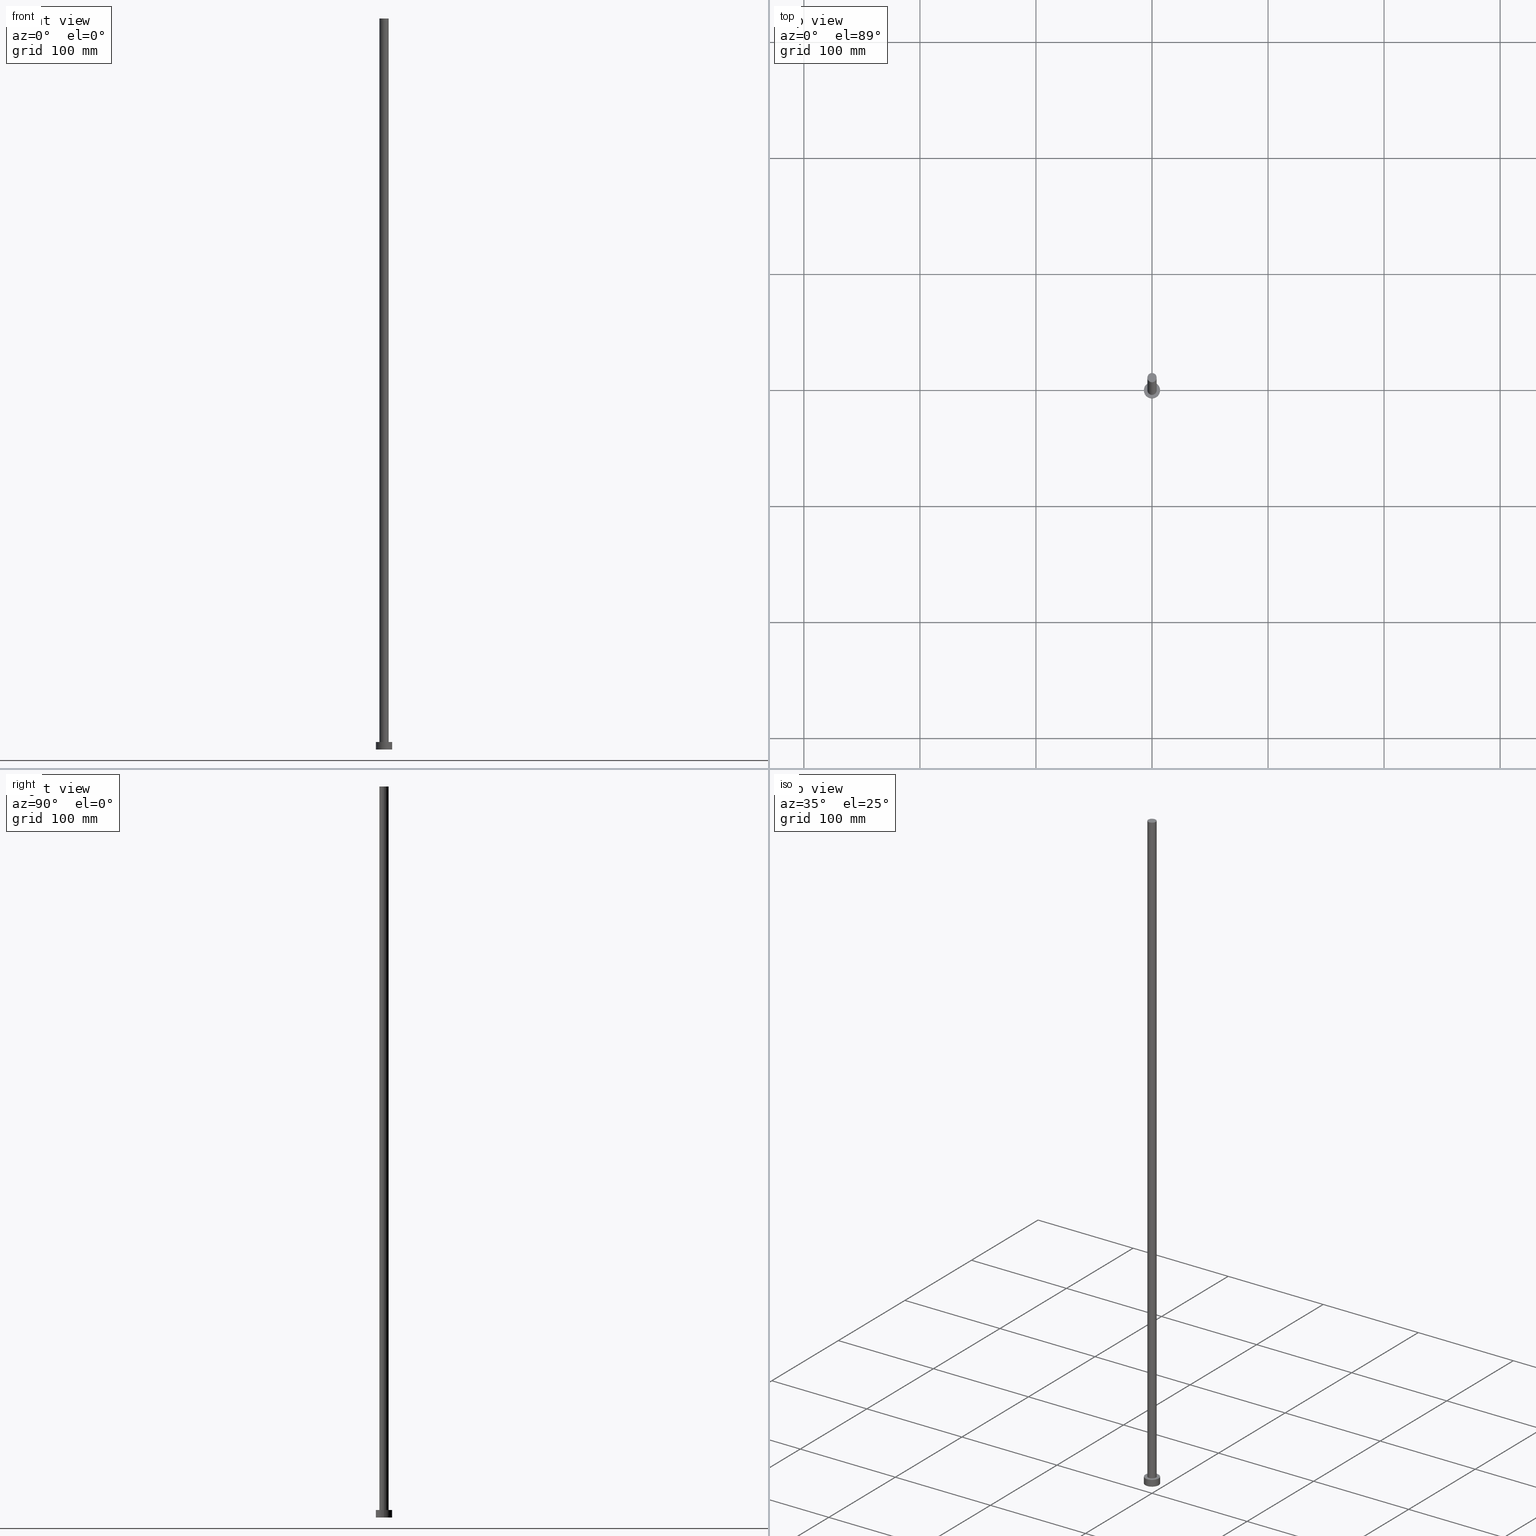
[diagram: canonical four-view strip — front | top / right | iso, engineering-drawing reading convention]
A machine part, canonical four-view strip (front | top / right | iso — engineering-drawing reading convention). The complete STEP part file that produces these views, byte-faithful:
ISO-10303-21;
HEADER;
FILE_DESCRIPTION (( 'STEP AP203' ),
    '1' );
FILE_NAME ('1e03.STEP',
    '2023-02-13T14:18:34',
    ( '' ),
    ( '' ),
    'SwSTEP 2.0',
    'SolidWorks 2019',
    '' );
FILE_SCHEMA (( 'CONFIG_CONTROL_DESIGN' ));
ENDSEC;

DATA;
#1 = EDGE_LOOP ( 'NONE', ( #228, #136 ) ) ;
#2 = DIRECTION ( 'NONE',  ( 0.000000000000000000, 0.000000000000000000, 1.000000000000000000 ) ) ;
#3 = EDGE_LOOP ( 'NONE', ( #190, #137, #186, #135 ) ) ;
#4 = LOCAL_TIME ( 15, 18, 34.00000000000000000, #131 ) ;
#5 = CARTESIAN_POINT ( 'NONE',  ( 0.000000000000000000, 0.000000000000000000, 0.000000000000000000 ) ) ;
#6 = ORIENTED_EDGE ( 'NONE', *, *, #52, .F. ) ;
#7 = CARTESIAN_POINT ( 'NONE',  ( -7.000000000000000000, 0.000000000000000000, 6.500000000000000000 ) ) ;
#8 = VECTOR ( 'NONE', #43, 1000.000000000000000 ) ;
#9 = CC_DESIGN_APPROVAL ( #201, ( #166 ) ) ;
#10 = CARTESIAN_POINT ( 'NONE',  ( 7.000000000000000000, 8.572527594031471218E-16, 0.000000000000000000 ) ) ;
#11 = CC_DESIGN_PERSON_AND_ORGANIZATION_ASSIGNMENT ( #141, #161, ( #85 ) ) ;
#12 = FACE_OUTER_BOUND ( 'NONE', #1, .T. ) ;
#13 = ADVANCED_FACE ( 'NONE', ( #174 ), #27, .F. ) ;
#14 = DATE_TIME_ROLE ( 'creation_date' ) ;
#15 = APPROVAL_DATE_TIME ( #250, #120 ) ;
#16 =( NAMED_UNIT ( * ) SI_UNIT ( $, .STERADIAN. ) SOLID_ANGLE_UNIT ( ) );
#17 =( GEOMETRIC_REPRESENTATION_CONTEXT ( 3 ) GLOBAL_UNCERTAINTY_ASSIGNED_CONTEXT ( ( #203 ) ) GLOBAL_UNIT_ASSIGNED_CONTEXT ( ( #37, #99, #16 ) ) REPRESENTATION_CONTEXT ( 'NONE', 'WORKASPACE' ) );
#18 = DATE_AND_TIME ( #103, #4 ) ;
#19 = APPROVAL ( #202, 'NEUR�EN�' ) ;
#20 = APPROVAL_ROLE ( '' ) ;
#21 = AXIS2_PLACEMENT_3D ( 'NONE', #235, #142, #31 ) ;
#22 = PLANE ( 'NONE',  #56 ) ;
#23 = VERTEX_POINT ( 'NONE', #7 ) ;
#24 = VERTEX_POINT ( 'NONE', #177 ) ;
#25 = LOCAL_TIME ( 15, 18, 34.00000000000000000, #234 ) ;
#26 = ORIENTED_EDGE ( 'NONE', *, *, #231, .T. ) ;
#27 = PLANE ( 'NONE',  #229 ) ;
#28 = DIRECTION ( 'NONE',  ( 0.000000000000000000, 0.000000000000000000, 1.000000000000000000 ) ) ;
#29 = DIRECTION ( 'NONE',  ( 0.000000000000000000, 0.000000000000000000, 1.000000000000000000 ) ) ;
#30 = PERSON_AND_ORGANIZATION_ROLE ( 'creator' ) ;
#31 = DIRECTION ( 'NONE',  ( 1.000000000000000000, 0.000000000000000000, 0.000000000000000000 ) ) ;
#32 = PERSON_AND_ORGANIZATION ( #104, #100 ) ;
#33 = DIRECTION ( 'NONE',  ( 0.000000000000000000, 0.000000000000000000, 1.000000000000000000 ) ) ;
#34 = CARTESIAN_POINT ( 'NONE',  ( 0.000000000000000000, 0.000000000000000000, 6.500000000000000000 ) ) ;
#35 = APPROVAL_STATUS ( 'not_yet_approved' ) ;
#36 = AXIS2_PLACEMENT_3D ( 'NONE', #34, #75, #236 ) ;
#37 =( LENGTH_UNIT ( ) NAMED_UNIT ( * ) SI_UNIT ( .MILLI., .METRE. ) );
#38 = PRODUCT_DEFINITION_SHAPE ( 'NONE', 'NONE',  #85 ) ;
#39 = APPLICATION_CONTEXT ( 'configuration controlled 3d designs of mechanical parts and assemblies' ) ;
#40 = ADVANCED_FACE ( 'NONE', ( #134 ), #122, .T. ) ;
#41 = DATE_TIME_ROLE ( 'classification_date' ) ;
#42 = AXIS2_PLACEMENT_3D ( 'NONE', #223, #46, #74 ) ;
#43 = DIRECTION ( 'NONE',  ( -0.000000000000000000, -0.000000000000000000, -1.000000000000000000 ) ) ;
#44 = LOCAL_TIME ( 15, 18, 34.00000000000000000, #180 ) ;
#45 = SECURITY_CLASSIFICATION_LEVEL ( 'unclassified' ) ;
#46 = DIRECTION ( 'NONE',  ( 0.000000000000000000, 0.000000000000000000, 1.000000000000000000 ) ) ;
#47 = VERTEX_POINT ( 'NONE', #168 ) ;
#48 = CC_DESIGN_PERSON_AND_ORGANIZATION_ASSIGNMENT ( #196, #77, ( #166 ) ) ;
#49 = DIRECTION ( 'NONE',  ( -0.000000000000000000, -0.000000000000000000, -1.000000000000000000 ) ) ;
#50 = ORIENTED_EDGE ( 'NONE', *, *, #239, .T. ) ;
#51 = ADVANCED_FACE ( 'NONE', ( #241 ), #108, .T. ) ;
#52 = EDGE_CURVE ( 'NONE', #249, #47, #156, .T. ) ;
#53 = DIRECTION ( 'NONE',  ( 1.000000000000000000, 0.000000000000000000, -0.000000000000000000 ) ) ;
#54 = APPROVAL_DATE_TIME ( #127, #201 ) ;
#55 = EDGE_CURVE ( 'NONE', #24, #249, #62, .T. ) ;
#56 = AXIS2_PLACEMENT_3D ( 'NONE', #126, #29, #53 ) ;
#57 = DIRECTION ( 'NONE',  ( -1.000000000000000000, 0.000000000000000000, 0.000000000000000000 ) ) ;
#58 = CARTESIAN_POINT ( 'NONE',  ( 7.000000000000000000, 8.572527594031471218E-16, 6.500000000000000000 ) ) ;
#59 = COORDINATED_UNIVERSAL_TIME_OFFSET ( 1, 0, .AHEAD. ) ;
#60 = APPLICATION_PROTOCOL_DEFINITION ( 'international standard', 'config_control_design', 1994, #246 ) ;
#61 = PERSON_AND_ORGANIZATION ( #104, #100 ) ;
#62 = CIRCLE ( 'NONE', #199, 4.000000000000000000 ) ;
#63 = ADVANCED_FACE ( 'NONE', ( #184 ), #82, .T. ) ;
#64 = DIRECTION ( 'NONE',  ( -0.000000000000000000, -0.000000000000000000, -1.000000000000000000 ) ) ;
#65 = ORIENTED_EDGE ( 'NONE', *, *, #158, .T. ) ;
#66 = CC_DESIGN_PERSON_AND_ORGANIZATION_ASSIGNMENT ( #216, #30, ( #166 ) ) ;
#67 = CARTESIAN_POINT ( 'NONE',  ( 0.000000000000000000, 0.000000000000000000, 6.500000000000000000 ) ) ;
#68 = DIRECTION ( 'NONE',  ( 1.000000000000000000, 0.000000000000000000, -0.000000000000000000 ) ) ;
#69 = DIRECTION ( 'NONE',  ( 0.000000000000000000, 0.000000000000000000, 1.000000000000000000 ) ) ;
#70 = EDGE_LOOP ( 'NONE', ( #232, #109, #110, #65 ) ) ;
#71 = CARTESIAN_POINT ( 'NONE',  ( 7.000000000000000000, 8.572527594031471218E-16, 6.500000000000000000 ) ) ;
#72 = CC_DESIGN_DATE_AND_TIME_ASSIGNMENT ( #107, #41, ( #113 ) ) ;
#73 = DESIGN_CONTEXT ( 'detailed design', #39, 'design' ) ;
#74 = DIRECTION ( 'NONE',  ( 1.000000000000000000, 0.000000000000000000, 0.000000000000000000 ) ) ;
#75 = DIRECTION ( 'NONE',  ( 0.000000000000000000, 0.000000000000000000, 1.000000000000000000 ) ) ;
#76 = PRODUCT_RELATED_PRODUCT_CATEGORY ( 'detail', '', ( #254 ) ) ;
#77 = PERSON_AND_ORGANIZATION_ROLE ( 'design_supplier' ) ;
#78 = CLOSED_SHELL ( 'NONE', ( #63, #51, #182, #162, #13, #40, #185 ) ) ;
#79 = APPROVAL_DATE_TIME ( #18, #19 ) ;
#80 = EDGE_CURVE ( 'NONE', #249, #24, #84, .T. ) ;
#81 = CALENDAR_DATE ( 2023, 13, 2 ) ;
#82 = CYLINDRICAL_SURFACE ( 'NONE', #159, 4.000000000000000000 ) ;
#83 = EDGE_LOOP ( 'NONE', ( #224, #210 ) ) ;
#84 = CIRCLE ( 'NONE', #42, 4.000000000000000000 ) ;
#85 = PRODUCT_DEFINITION ( 'NEZN�M�', '', #166, #73 ) ;
#86 = DIRECTION ( 'NONE',  ( 0.000000000000000000, 0.000000000000000000, 1.000000000000000000 ) ) ;
#87 = EDGE_CURVE ( 'NONE', #23, #157, #92, .T. ) ;
#88 = ORIENTED_EDGE ( 'NONE', *, *, #152, .T. ) ;
#89 = CIRCLE ( 'NONE', #179, 7.000000000000000000 ) ;
#90 = VERTEX_POINT ( 'NONE', #71 ) ;
#91 = AXIS2_PLACEMENT_3D ( 'NONE', #247, #144, #198 ) ;
#92 = LINE ( 'NONE', #164, #233 ) ;
#93 = CARTESIAN_POINT ( 'NONE',  ( 0.000000000000000000, 0.000000000000000000, 6.500000000000000000 ) ) ;
#94 = CC_DESIGN_DATE_AND_TIME_ASSIGNMENT ( #194, #14, ( #85 ) ) ;
#95 = CIRCLE ( 'NONE', #91, 7.000000000000000000 ) ;
#96 = APPROVAL_STATUS ( 'not_yet_approved' ) ;
#97 = PLANE ( 'NONE',  #167 ) ;
#98 = DIRECTION ( 'NONE',  ( 1.000000000000000000, 0.000000000000000000, -0.000000000000000000 ) ) ;
#99 =( NAMED_UNIT ( * ) PLANE_ANGLE_UNIT ( ) SI_UNIT ( $, .RADIAN. ) );
#100 = ORGANIZATION ( 'NEUR�EN�', 'NEUR�EN�', '' ) ;
#101 = PERSON_AND_ORGANIZATION_ROLE ( 'design_owner' ) ;
#102 = EDGE_CURVE ( 'NONE', #230, #157, #145, .T. ) ;
#103 = CALENDAR_DATE ( 2023, 13, 2 ) ;
#104 = PERSON ( 'NEUR�EN�', 'NEUR�EN�', 'NEUR�EN�', ('NEUR�EN�'), ('NEUR�EN�'), ('NEUR�EN�') ) ;
#105 = FACE_BOUND ( 'NONE', #176, .T. ) ;
#106 = AXIS2_PLACEMENT_3D ( 'NONE', #253, #220, #150 ) ;
#107 = DATE_AND_TIME ( #81, #209 ) ;
#108 = CYLINDRICAL_SURFACE ( 'NONE', #124, 7.000000000000000000 ) ;
#109 = ORIENTED_EDGE ( 'NONE', *, *, #170, .F. ) ;
#110 = ORIENTED_EDGE ( 'NONE', *, *, #87, .T. ) ;
#111 = AXIS2_PLACEMENT_3D ( 'NONE', #214, #117, #178 ) ;
#112 = VERTEX_POINT ( 'NONE', #138 ) ;
#113 = SECURITY_CLASSIFICATION ( '', '', #45 ) ;
#114 = ORIENTED_EDGE ( 'NONE', *, *, #212, .T. ) ;
#115 = AXIS2_PLACEMENT_3D ( 'NONE', #93, #49, #197 ) ;
#116 = ADVANCED_BREP_SHAPE_REPRESENTATION ( '1e03', ( #207, #106 ), #17 ) ;
#117 = DIRECTION ( 'NONE',  ( 0.000000000000000000, 0.000000000000000000, 1.000000000000000000 ) ) ;
#118 = CARTESIAN_POINT ( 'NONE',  ( -4.000000000000000000, 0.000000000000000000, 630.0000000000000000 ) ) ;
#119 = CYLINDRICAL_SURFACE ( 'NONE', #115, 7.000000000000000000 ) ;
#120 = APPROVAL ( #35, 'NEUR�EN�' ) ;
#121 = CALENDAR_DATE ( 2023, 13, 2 ) ;
#122 = CYLINDRICAL_SURFACE ( 'NONE', #191, 4.000000000000000000 ) ;
#123 = LINE ( 'NONE', #58, #255 ) ;
#124 = AXIS2_PLACEMENT_3D ( 'NONE', #67, #173, #248 ) ;
#125 = APPROVAL_ROLE ( '' ) ;
#126 = CARTESIAN_POINT ( 'NONE',  ( 0.000000000000000000, 0.000000000000000000, 6.500000000000000000 ) ) ;
#127 = DATE_AND_TIME ( #163, #44 ) ;
#128 = PERSON_AND_ORGANIZATION_ROLE ( 'classification_officer' ) ;
#129 = VECTOR ( 'NONE', #195, 1000.000000000000000 ) ;
#130 = PERSON_AND_ORGANIZATION ( #104, #100 ) ;
#131 = COORDINATED_UNIVERSAL_TIME_OFFSET ( 1, 0, .AHEAD. ) ;
#132 = SHAPE_DEFINITION_REPRESENTATION ( #38, #116 ) ;
#133 = CARTESIAN_POINT ( 'NONE',  ( 0.000000000000000000, 0.000000000000000000, 630.0000000000000000 ) ) ;
#134 = FACE_OUTER_BOUND ( 'NONE', #213, .T. ) ;
#135 = ORIENTED_EDGE ( 'NONE', *, *, #87, .F. ) ;
#136 = ORIENTED_EDGE ( 'NONE', *, *, #80, .T. ) ;
#137 = ORIENTED_EDGE ( 'NONE', *, *, #192, .T. ) ;
#138 = CARTESIAN_POINT ( 'NONE',  ( -4.000000000000000000, 0.000000000000000000, 6.500000000000000000 ) ) ;
#139 = CARTESIAN_POINT ( 'NONE',  ( -7.000000000000000000, 0.000000000000000000, 0.000000000000000000 ) ) ;
#140 = DIRECTION ( 'NONE',  ( -0.000000000000000000, -0.000000000000000000, -1.000000000000000000 ) ) ;
#141 = PERSON_AND_ORGANIZATION ( #104, #100 ) ;
#142 = DIRECTION ( 'NONE',  ( 0.000000000000000000, 0.000000000000000000, 1.000000000000000000 ) ) ;
#143 = CARTESIAN_POINT ( 'NONE',  ( 0.000000000000000000, 0.000000000000000000, 630.0000000000000000 ) ) ;
#144 = DIRECTION ( 'NONE',  ( 0.000000000000000000, 0.000000000000000000, 1.000000000000000000 ) ) ;
#145 = CIRCLE ( 'NONE', #21, 7.000000000000000000 ) ;
#146 = CARTESIAN_POINT ( 'NONE',  ( 0.000000000000000000, 0.000000000000000000, 0.000000000000000000 ) ) ;
#147 = DIRECTION ( 'NONE',  ( 1.000000000000000000, 0.000000000000000000, 0.000000000000000000 ) ) ;
#148 = CC_DESIGN_PERSON_AND_ORGANIZATION_ASSIGNMENT ( #200, #101, ( #254 ) ) ;
#149 = CALENDAR_DATE ( 2023, 13, 2 ) ;
#150 = DIRECTION ( 'NONE',  ( 1.000000000000000000, 0.000000000000000000, 0.000000000000000000 ) ) ;
#151 = CARTESIAN_POINT ( 'NONE',  ( 4.000000000000000000, 4.898587196589411843E-16, 630.0000000000000000 ) ) ;
#152 = EDGE_CURVE ( 'NONE', #112, #47, #219, .T. ) ;
#153 = DIRECTION ( 'NONE',  ( 1.000000000000000000, 0.000000000000000000, 0.000000000000000000 ) ) ;
#154 = DIRECTION ( 'NONE',  ( -1.000000000000000000, 0.000000000000000000, 0.000000000000000000 ) ) ;
#155 = AXIS2_PLACEMENT_3D ( 'NONE', #165, #69, #147 ) ;
#156 = LINE ( 'NONE', #227, #8 ) ;
#157 = VERTEX_POINT ( 'NONE', #139 ) ;
#158 = EDGE_CURVE ( 'NONE', #157, #230, #89, .T. ) ;
#159 = AXIS2_PLACEMENT_3D ( 'NONE', #171, #64, #154 ) ;
#160 = CC_DESIGN_APPROVAL ( #19, ( #113 ) ) ;
#161 = PERSON_AND_ORGANIZATION_ROLE ( 'creator' ) ;
#162 = ADVANCED_FACE ( 'NONE', ( #105, #204 ), #22, .T. ) ;
#163 = CALENDAR_DATE ( 2023, 13, 2 ) ;
#164 = CARTESIAN_POINT ( 'NONE',  ( -7.000000000000000000, 0.000000000000000000, 6.500000000000000000 ) ) ;
#165 = CARTESIAN_POINT ( 'NONE',  ( 0.000000000000000000, 0.000000000000000000, 6.500000000000000000 ) ) ;
#166 = PRODUCT_DEFINITION_FORMATION_WITH_SPECIFIED_SOURCE ( 'LIBOVOLN�', '', #254, .NOT_KNOWN. ) ;
#167 = AXIS2_PLACEMENT_3D ( 'NONE', #211, #28, #98 ) ;
#168 = CARTESIAN_POINT ( 'NONE',  ( 4.000000000000000000, 4.898587196589411843E-16, 6.500000000000000000 ) ) ;
#169 = COORDINATED_UNIVERSAL_TIME_OFFSET ( 1, 0, .AHEAD. ) ;
#170 = EDGE_CURVE ( 'NONE', #23, #90, #95, .T. ) ;
#171 = CARTESIAN_POINT ( 'NONE',  ( 0.000000000000000000, 0.000000000000000000, 630.0000000000000000 ) ) ;
#172 = ORIENTED_EDGE ( 'NONE', *, *, #80, .F. ) ;
#173 = DIRECTION ( 'NONE',  ( -0.000000000000000000, -0.000000000000000000, -1.000000000000000000 ) ) ;
#174 = FACE_OUTER_BOUND ( 'NONE', #83, .T. ) ;
#175 = EDGE_LOOP ( 'NONE', ( #172, #226, #26, #244 ) ) ;
#176 = EDGE_LOOP ( 'NONE', ( #188, #208 ) ) ;
#177 = CARTESIAN_POINT ( 'NONE',  ( -4.000000000000000000, 0.000000000000000000, 630.0000000000000000 ) ) ;
#178 = DIRECTION ( 'NONE',  ( 1.000000000000000000, 0.000000000000000000, 0.000000000000000000 ) ) ;
#179 = AXIS2_PLACEMENT_3D ( 'NONE', #146, #33, #153 ) ;
#180 = COORDINATED_UNIVERSAL_TIME_OFFSET ( 1, 0, .AHEAD. ) ;
#181 = DIRECTION ( 'NONE',  ( -0.000000000000000000, -0.000000000000000000, -1.000000000000000000 ) ) ;
#182 = ADVANCED_FACE ( 'NONE', ( #237 ), #119, .T. ) ;
#183 = CC_DESIGN_APPROVAL ( #120, ( #85 ) ) ;
#184 = FACE_OUTER_BOUND ( 'NONE', #175, .T. ) ;
#185 = ADVANCED_FACE ( 'NONE', ( #12 ), #97, .T. ) ;
#186 = ORIENTED_EDGE ( 'NONE', *, *, #102, .T. ) ;
#187 = APPROVAL_PERSON_ORGANIZATION ( #61, #120, #240 ) ;
#188 = ORIENTED_EDGE ( 'NONE', *, *, #152, .F. ) ;
#189 = EDGE_LOOP ( 'NONE', ( #245, #50 ) ) ;
#190 = ORIENTED_EDGE ( 'NONE', *, *, #239, .F. ) ;
#191 = AXIS2_PLACEMENT_3D ( 'NONE', #143, #140, #57 ) ;
#192 = EDGE_CURVE ( 'NONE', #90, #230, #123, .T. ) ;
#193 = APPROVAL_PERSON_ORGANIZATION ( #130, #19, #20 ) ;
#194 = DATE_AND_TIME ( #121, #25 ) ;
#195 = DIRECTION ( 'NONE',  ( -0.000000000000000000, -0.000000000000000000, -1.000000000000000000 ) ) ;
#196 = PERSON_AND_ORGANIZATION ( #104, #100 ) ;
#197 = DIRECTION ( 'NONE',  ( -1.000000000000000000, 0.000000000000000000, 0.000000000000000000 ) ) ;
#198 = DIRECTION ( 'NONE',  ( 1.000000000000000000, 0.000000000000000000, 0.000000000000000000 ) ) ;
#199 = AXIS2_PLACEMENT_3D ( 'NONE', #133, #2, #205 ) ;
#200 = PERSON_AND_ORGANIZATION ( #104, #100 ) ;
#201 = APPROVAL ( #96, 'NEUR�EN�' ) ;
#202 = APPROVAL_STATUS ( 'not_yet_approved' ) ;
#203 = UNCERTAINTY_MEASURE_WITH_UNIT (LENGTH_MEASURE( 1.000000000000000082E-05 ), #37, 'distance_accuracy_value', 'NONE');
#204 = FACE_OUTER_BOUND ( 'NONE', #189, .T. ) ;
#205 = DIRECTION ( 'NONE',  ( 1.000000000000000000, 0.000000000000000000, 0.000000000000000000 ) ) ;
#206 = ORIENTED_EDGE ( 'NONE', *, *, #55, .F. ) ;
#207 = MANIFOLD_SOLID_BREP ( 'P�idat vysunut�m3', #78 ) ;
#208 = ORIENTED_EDGE ( 'NONE', *, *, #231, .F. ) ;
#209 = LOCAL_TIME ( 15, 18, 34.00000000000000000, #169 ) ;
#210 = ORIENTED_EDGE ( 'NONE', *, *, #102, .F. ) ;
#211 = CARTESIAN_POINT ( 'NONE',  ( 0.000000000000000000, 0.000000000000000000, 630.0000000000000000 ) ) ;
#212 = EDGE_CURVE ( 'NONE', #24, #112, #251, .T. ) ;
#213 = EDGE_LOOP ( 'NONE', ( #6, #206, #114, #88 ) ) ;
#214 = CARTESIAN_POINT ( 'NONE',  ( 0.000000000000000000, 0.000000000000000000, 6.500000000000000000 ) ) ;
#215 = CIRCLE ( 'NONE', #155, 7.000000000000000000 ) ;
#216 = PERSON_AND_ORGANIZATION ( #104, #100 ) ;
#217 = DIRECTION ( 'NONE',  ( -0.000000000000000000, -0.000000000000000000, -1.000000000000000000 ) ) ;
#218 = MECHANICAL_CONTEXT ( 'NONE', #246, 'mechanical' ) ;
#219 = CIRCLE ( 'NONE', #111, 4.000000000000000000 ) ;
#220 = DIRECTION ( 'NONE',  ( 0.000000000000000000, 0.000000000000000000, 1.000000000000000000 ) ) ;
#221 = PERSON_AND_ORGANIZATION ( #104, #100 ) ;
#222 = LOCAL_TIME ( 15, 18, 34.00000000000000000, #59 ) ;
#223 = CARTESIAN_POINT ( 'NONE',  ( 0.000000000000000000, 0.000000000000000000, 630.0000000000000000 ) ) ;
#224 = ORIENTED_EDGE ( 'NONE', *, *, #158, .F. ) ;
#225 = CC_DESIGN_PERSON_AND_ORGANIZATION_ASSIGNMENT ( #221, #128, ( #113 ) ) ;
#226 = ORIENTED_EDGE ( 'NONE', *, *, #52, .T. ) ;
#227 = CARTESIAN_POINT ( 'NONE',  ( 4.000000000000000000, 4.898587196589411843E-16, 630.0000000000000000 ) ) ;
#228 = ORIENTED_EDGE ( 'NONE', *, *, #55, .T. ) ;
#229 = AXIS2_PLACEMENT_3D ( 'NONE', #5, #86, #68 ) ;
#230 = VERTEX_POINT ( 'NONE', #10 ) ;
#231 = EDGE_CURVE ( 'NONE', #47, #112, #252, .T. ) ;
#232 = ORIENTED_EDGE ( 'NONE', *, *, #192, .F. ) ;
#233 = VECTOR ( 'NONE', #217, 1000.000000000000000 ) ;
#234 = COORDINATED_UNIVERSAL_TIME_OFFSET ( 1, 0, .AHEAD. ) ;
#235 = CARTESIAN_POINT ( 'NONE',  ( 0.000000000000000000, 0.000000000000000000, 0.000000000000000000 ) ) ;
#236 = DIRECTION ( 'NONE',  ( 1.000000000000000000, 0.000000000000000000, 0.000000000000000000 ) ) ;
#237 = FACE_OUTER_BOUND ( 'NONE', #70, .T. ) ;
#238 = APPROVAL_PERSON_ORGANIZATION ( #32, #201, #125 ) ;
#239 = EDGE_CURVE ( 'NONE', #90, #23, #215, .T. ) ;
#240 = APPROVAL_ROLE ( '' ) ;
#241 = FACE_OUTER_BOUND ( 'NONE', #3, .T. ) ;
#242 = APPLICATION_PROTOCOL_DEFINITION ( 'international standard', 'config_control_design', 1994, #39 ) ;
#243 = CC_DESIGN_SECURITY_CLASSIFICATION ( #113, ( #166 ) ) ;
#244 = ORIENTED_EDGE ( 'NONE', *, *, #212, .F. ) ;
#245 = ORIENTED_EDGE ( 'NONE', *, *, #170, .T. ) ;
#246 = APPLICATION_CONTEXT ( 'configuration controlled 3d designs of mechanical parts and assemblies' ) ;
#247 = CARTESIAN_POINT ( 'NONE',  ( 0.000000000000000000, 0.000000000000000000, 6.500000000000000000 ) ) ;
#248 = DIRECTION ( 'NONE',  ( -1.000000000000000000, 0.000000000000000000, 0.000000000000000000 ) ) ;
#249 = VERTEX_POINT ( 'NONE', #151 ) ;
#250 = DATE_AND_TIME ( #149, #222 ) ;
#251 = LINE ( 'NONE', #118, #129 ) ;
#252 = CIRCLE ( 'NONE', #36, 4.000000000000000000 ) ;
#253 = CARTESIAN_POINT ( 'NONE',  ( 0.000000000000000000, 0.000000000000000000, 0.000000000000000000 ) ) ;
#254 = PRODUCT ( '1e03', '1e03', '', ( #218 ) ) ;
#255 = VECTOR ( 'NONE', #181, 1000.000000000000000 ) ;
ENDSEC;
END-ISO-10303-21;
